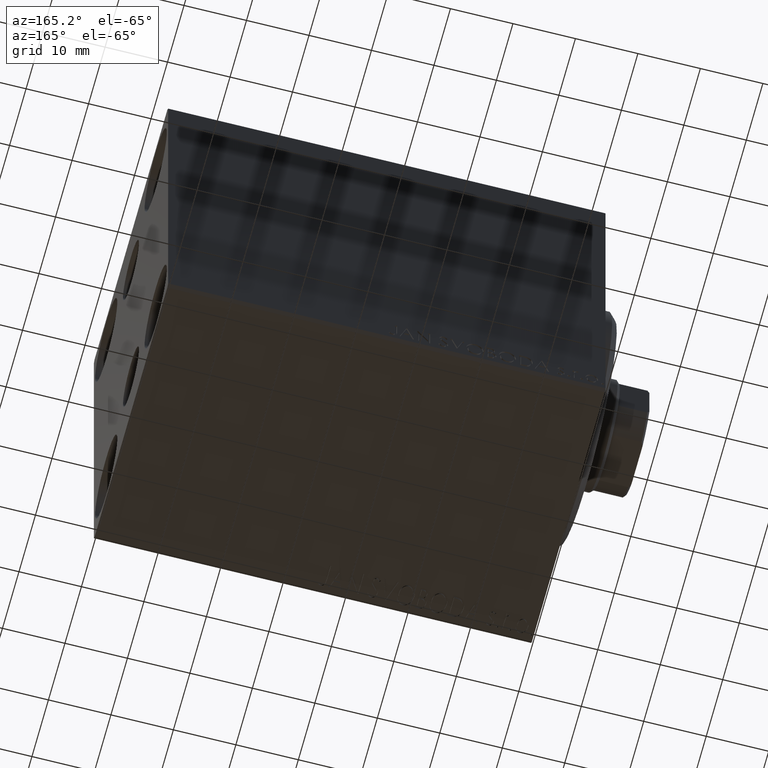
[diagram: clean part render]
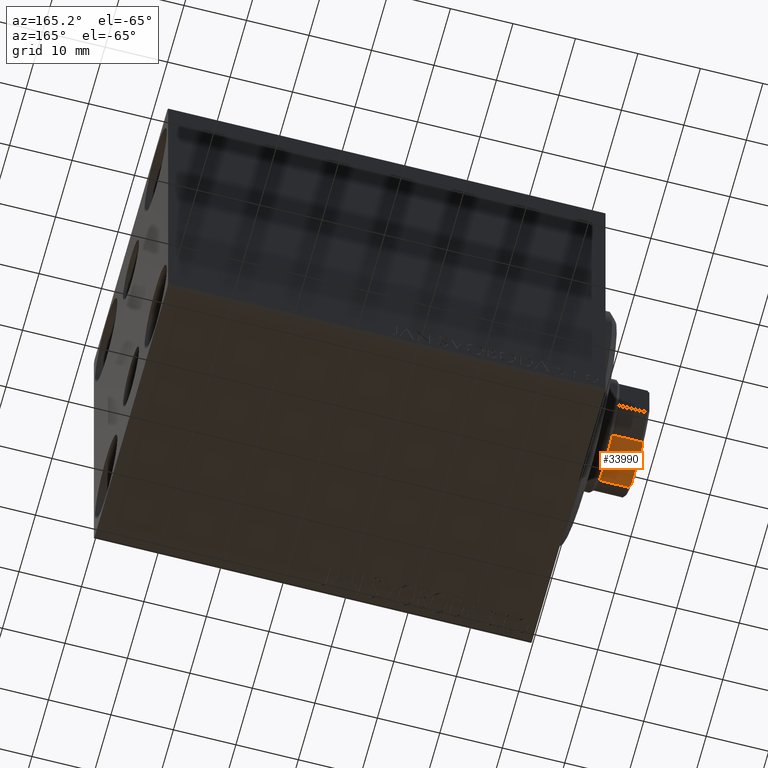
[diagram: same view with one face highlighted and labeled with its STEP entity id]
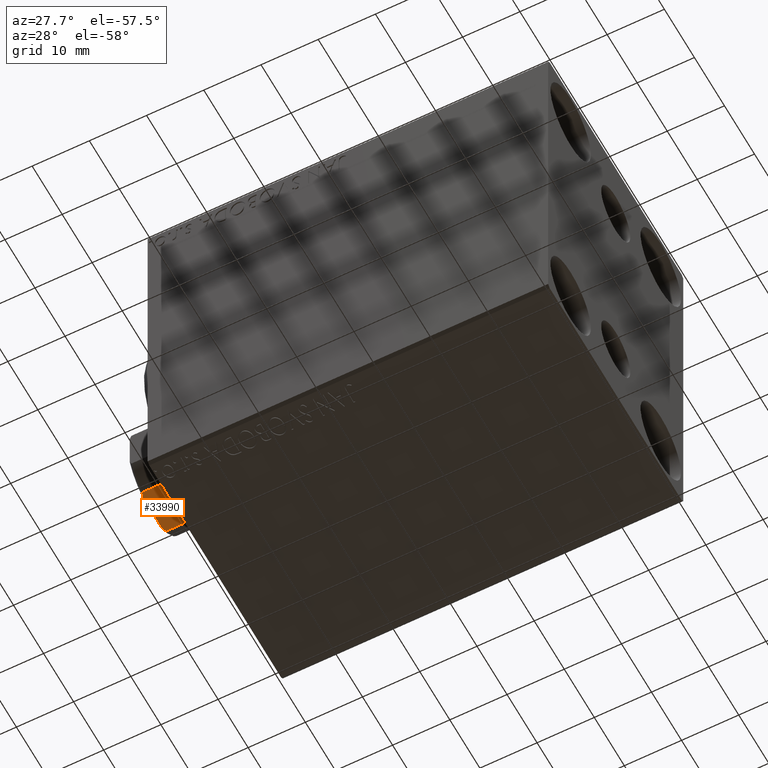
[diagram: same view with one face highlighted and labeled with its STEP entity id]
A machine part, auxiliary view. The second image highlights one B-rep face of the part: STEP entity #33990.
A second angle (auxiliary view) of the same face is appended — the face is thin or edge-on in the first view.
In plain terms, the highlighted planar face has unit normal (0, 0, 1).
Its self-contained STEP definition (entity closure, byte-faithful):
#617 = FACE_OUTER_BOUND ( 'NONE', #14405, .T. ) ;
#2437 = CARTESIAN_POINT ( 'NONE',  ( -7.499999999999996447, -4.000000000000007105, 74.70000000000004547 ) ) ;
#2748 = DIRECTION ( 'NONE',  ( 1.734723475976807094E-16, -1.000000000000000000, 0.000000000000000000 ) ) ;
#3016 = CARTESIAN_POINT ( 'NONE',  ( -7.499999999999996447, 4.000000000000008882, 74.70000000000001705 ) ) ;
#3260 = EDGE_CURVE ( 'NONE', #11949, #4435, #24615, .T. ) ;
#3754 = CARTESIAN_POINT ( 'NONE',  ( -7.499999999999999112, -3.315116890850218212, 75.00000000000001421 ) ) ;
#4435 = VERTEX_POINT ( 'NONE', #2437 ) ;
#5296 = CARTESIAN_POINT ( 'NONE',  ( -7.499999999999996447, -4.000000000000007105, 74.70000000000004547 ) ) ;
#7036 = VECTOR ( 'NONE', #31495, 1000.000000000000000 ) ;
#7271 = DIRECTION ( 'NONE',  ( 1.000000000000000000, 1.734723475976807094E-16, -0.000000000000000000 ) ) ;
#7301 = VECTOR ( 'NONE', #11817, 1000.000000000000000 ) ;
#7641 = VECTOR ( 'NONE', #39071, 1000.000000000000000 ) ;
#8623 = CARTESIAN_POINT ( 'NONE',  ( -7.499999999999996447, -3.774404943294785486, 74.80616237962603066 ) ) ;
#11541 = CARTESIAN_POINT ( 'NONE',  ( -7.499999999999996447, 4.000000000000011546, 70.00000000000000000 ) ) ;
#11817 = DIRECTION ( 'NONE',  ( 1.734723475976807094E-16, -1.000000000000000000, 0.000000000000000000 ) ) ;
#11949 = VERTEX_POINT ( 'NONE', #27536 ) ;
#12128 = EDGE_CURVE ( 'NONE', #37189, #12761, #42608, .T. ) ;
#12306 = ORIENTED_EDGE ( 'NONE', *, *, #32663, .T. ) ;
#12761 = VERTEX_POINT ( 'NONE', #3754 ) ;
#14405 = EDGE_LOOP ( 'NONE', ( #28964, #28176, #18689, #12306, #24845, #31091 ) ) ;
#15360 = LINE ( 'NONE', #35514, #7641 ) ;
#16890 = VECTOR ( 'NONE', #2748, 1000.000000000000000 ) ;
#18689 = ORIENTED_EDGE ( 'NONE', *, *, #12128, .F. ) ;
#18921 = B_SPLINE_CURVE_WITH_KNOTS ( 'NONE', 3,
 ( #25565, #28892, #19147, #32665 ),
 .UNSPECIFIED., .F., .F.,
 ( 4, 4 ),
 ( 0.000000000000000000, 0.0007477064084242969868 ),
 .UNSPECIFIED. ) ;
#19147 = CARTESIAN_POINT ( 'NONE',  ( -7.500000000000000888, 3.774404943294785042, 74.80616237962603066 ) ) ;
#20377 = VERTEX_POINT ( 'NONE', #11541 ) ;
#22119 = CARTESIAN_POINT ( 'NONE',  ( -7.500000000000000000, -3.546278369582442025, 74.90654544845632756 ) ) ;
#23254 = EDGE_CURVE ( 'NONE', #4435, #12761, #26368, .T. ) ;
#24615 = LINE ( 'NONE', #38152, #7036 ) ;
#24845 = ORIENTED_EDGE ( 'NONE', *, *, #30192, .F. ) ;
#25565 = CARTESIAN_POINT ( 'NONE',  ( -7.500000000000000888, 3.315116890850160036, 75.00000000000001421 ) ) ;
#26368 = B_SPLINE_CURVE_WITH_KNOTS ( 'NONE', 3,
 ( #5296, #8623, #22119, #35641 ),
 .UNSPECIFIED., .F., .F.,
 ( 4, 4 ),
 ( 0.000000000000000000, 0.0007477064084242304167 ),
 .UNSPECIFIED. ) ;
#27180 = CARTESIAN_POINT ( 'NONE',  ( -7.500000000000001776, 7.500000000000001776, 75.00000000000001421 ) ) ;
#27536 = CARTESIAN_POINT ( 'NONE',  ( -7.499999999999998224, -4.000000000000007994, 70.00000000000001421 ) ) ;
#28176 = ORIENTED_EDGE ( 'NONE', *, *, #23254, .T. ) ;
#28643 = CARTESIAN_POINT ( 'NONE',  ( -7.500000000000001776, 7.500000000000001776, 75.00000000000001421 ) ) ;
#28892 = CARTESIAN_POINT ( 'NONE',  ( -7.500000000000000888, 3.546278369582360757, 74.90654544845624230 ) ) ;
#28964 = ORIENTED_EDGE ( 'NONE', *, *, #3260, .T. ) ;
#30192 = EDGE_CURVE ( 'NONE', #20377, #38980, #15360, .T. ) ;
#31091 = ORIENTED_EDGE ( 'NONE', *, *, #33433, .T. ) ;
#31495 = DIRECTION ( 'NONE',  ( -0.000000000000000000, -0.000000000000000000, 1.000000000000000000 ) ) ;
#32663 = EDGE_CURVE ( 'NONE', #37189, #38980, #18921, .T. ) ;
#32665 = CARTESIAN_POINT ( 'NONE',  ( -7.499999999999996447, 4.000000000000008882, 74.70000000000001705 ) ) ;
#33433 = EDGE_CURVE ( 'NONE', #20377, #11949, #39754, .T. ) ;
#33990 = ADVANCED_FACE ( 'NONE', ( #617 ), #34718, .F. ) ;
#34718 = PLANE ( 'NONE',  #39563 ) ;
#35514 = CARTESIAN_POINT ( 'NONE',  ( -7.499999999999996447, 4.000000000000008882, -0.001000000000001000089 ) ) ;
#35641 = CARTESIAN_POINT ( 'NONE',  ( -7.499999999999999112, -3.315116890850218212, 75.00000000000001421 ) ) ;
#36211 = CARTESIAN_POINT ( 'NONE',  ( -7.500000000000000888, 3.315116890850160036, 75.00000000000001421 ) ) ;
#36215 = CARTESIAN_POINT ( 'NONE',  ( -7.500000000000001776, 7.500000000000001776, 70.00000000000000000 ) ) ;
#37189 = VERTEX_POINT ( 'NONE', #36211 ) ;
#38152 = CARTESIAN_POINT ( 'NONE',  ( -7.499999999999996447, -4.000000000000007105, -0.001000000000001000089 ) ) ;
#38980 = VERTEX_POINT ( 'NONE', #3016 ) ;
#39071 = DIRECTION ( 'NONE',  ( -0.000000000000000000, -0.000000000000000000, 1.000000000000000000 ) ) ;
#39563 = AXIS2_PLACEMENT_3D ( 'NONE', #27180, #7271, #40928 ) ;
#39754 = LINE ( 'NONE', #36215, #16890 ) ;
#40928 = DIRECTION ( 'NONE',  ( -1.734723475976807094E-16, 1.000000000000000000, 0.000000000000000000 ) ) ;
#42608 = LINE ( 'NONE', #28643, #7301 ) ;